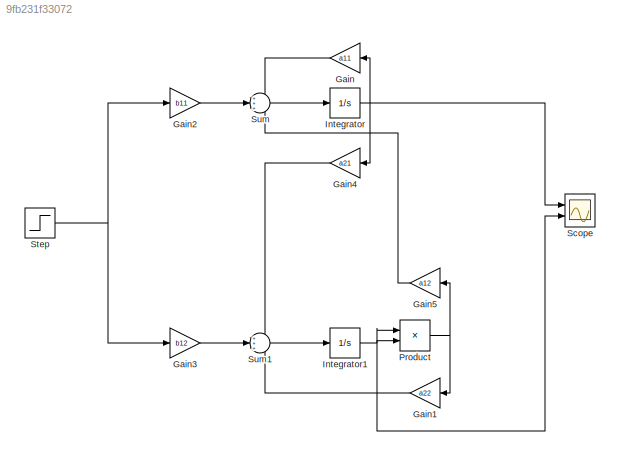
MODEL slx_9fb231f33072
KIND model
CONFIG AbsTol = auto
CONFIG EnableMultiTasking = off
CONFIG FixedStep = auto
CONFIG MaxStep = 1e-3
CONFIG MinStep = auto
CONFIG RelTol = 1e-3
CONFIG SampleTimeConstraint = Unconstrained
CONFIG SolverName = VariableStepAuto
CONFIG StartTime = 0.0
CONFIG StopTime = 1
BLOCK [Gain] Gain
  Gain = a11
  NameLocation = top
BLOCK [Gain] Gain1
  Gain = a22
  NameLocation = top
BLOCK [Gain] Gain2
  Gain = b11
BLOCK [Gain] Gain3
  Gain = b12
BLOCK [Gain] Gain4
  Gain = a21
  NameLocation = top
BLOCK [Gain] Gain5
  Gain = a12
  NameLocation = top
BLOCK [Integrator] Integrator
  Ports = [1, 1]
BLOCK [Integrator] Integrator1
  Ports = [1, 1]
BLOCK [Product] Product
  Ports = [2, 1]
BLOCK [Scope] Scope
  Floating = off
  NumInputPorts = 2
  Ports = [2]
  ScopeSpecificationString = Simulink.scopes.TimeScopeBlockCfg('CurrentConfiguration', extmgr.ConfigurationSet(extmgr.Configuration('Core','General UI',true,'FigureColor',[1 1 1]),extmgr.Configuration('Core','Source UI',true),extmgr.Configuration('Sources','WiredSimulink',true),extmgr.Configuration('Visuals','Time Domain',true,'SerializedDisplays',{struct('MinYLimReal','-0.08697','MaxYLimReal','0.78276','YLabelReal','y1, y2',...<+1639ch>
BLOCK [Step] Step
  After = u
  SampleTime = 0
  Time = 0
BLOCK [Sum] Sum
  Inputs = +++
  Ports = [3, 1]
BLOCK [Sum] Sum1
  Inputs = +++
  Ports = [3, 1]
LINE Gain1:1 -> Sum1:3
LINE Gain2:1 -> Sum:2
LINE Gain3:1 -> Sum1:2
LINE Gain4:1 -> Sum1:1
LINE Gain5:1 -> Sum:3
LINE Gain:1 -> Sum:1
NET Integrator1:1 -> Product:1, Product:2, Scope:2
NET Integrator:1 -> Gain4:1, Gain:1, Scope:1
NET Product:1 -> Gain1:1, Gain5:1
NET Step:1 -> Gain2:1, Gain3:1
LINE Sum1:1 -> Integrator1:1
LINE Sum:1 -> Integrator:1
note: NET lines group one-source signal fan-out (src -> all destinations, sorted); 1:1 wires keep LINE
